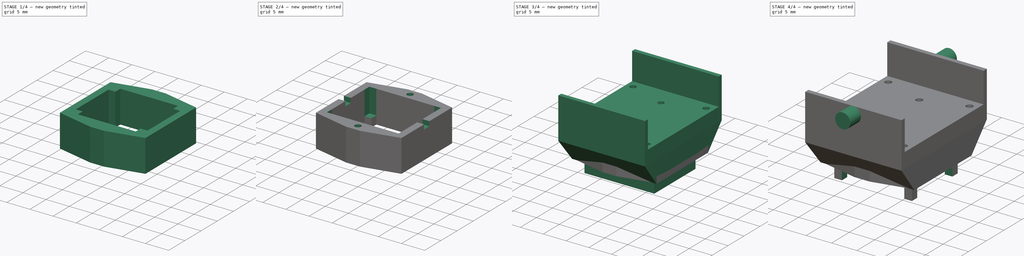
[diagram: build sequence overview — one tinted view per stage of 4, left to right]
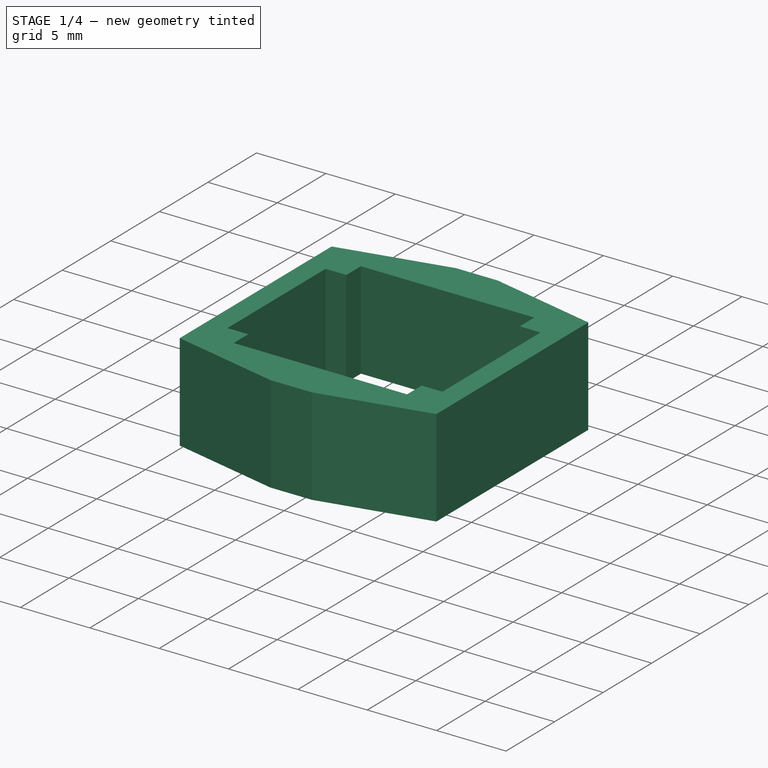
[diagram: stage 1 of 4 — iso view after this stage's code; geometry added in this stage tinted green]
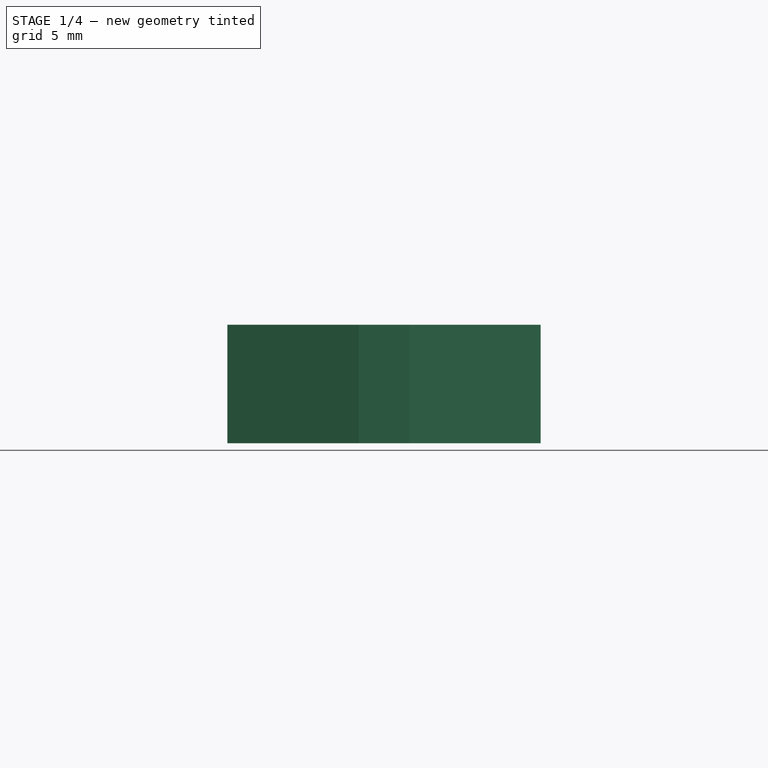
[diagram: stage 1 of 4 — front view after this stage's code; geometry added in this stage tinted green]
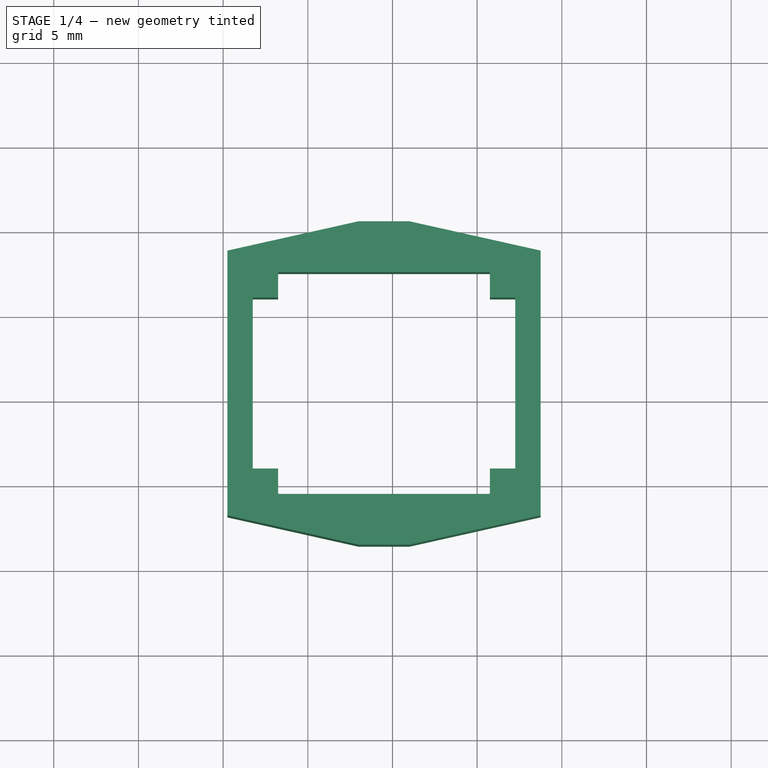
[diagram: stage 1 of 4 — top view after this stage's code; geometry added in this stage tinted green]
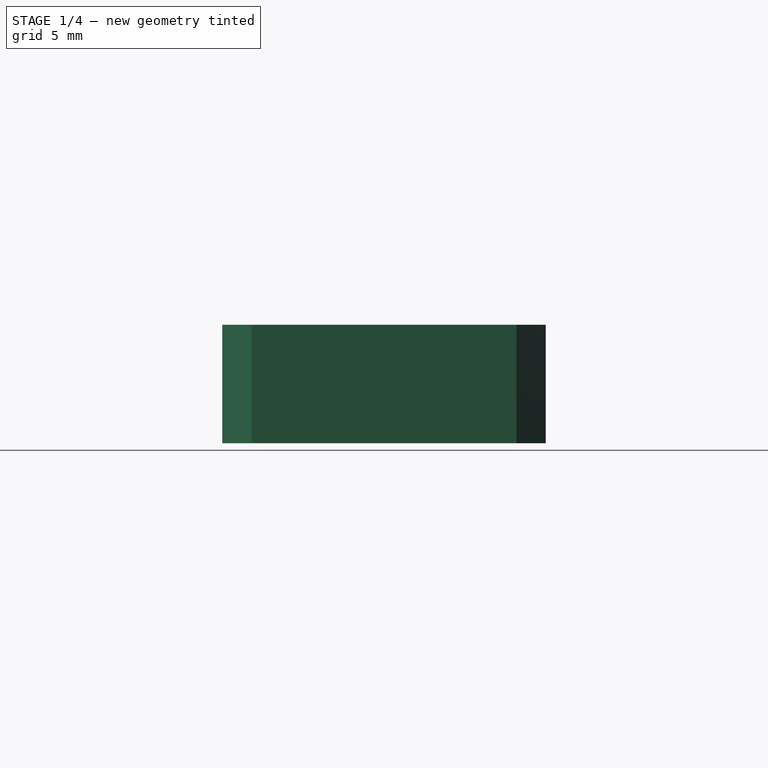
[diagram: stage 1 of 4 — right view after this stage's code; geometry added in this stage tinted green]
FCSTD DOCUMENT  (FreeCAD 0.19R24267 +99 (Git))
Label: Camera
License: All rights reserved
LicenseURL: http://en.wikipedia.org/wiki/All_rights_reserved
objects: Sketcher::SketchObject×16, PartDesign::Pocket×6, PartDesign::Pad×5, PartDesign::Body×2, PartDesign::AdditiveLoft×1
note: 42 computed .brp shape members not serialized (recipe doc carries the construction recipe); baked Part::Feature solids carry a one-line shape summary decoded from their .brp

FEATURE [Sketcher::SketchObject] Sketch
  FullyConstrained = true
  MapMode = 5
  Support = -> [XY_Plane]
  sketch-geometry (25):
    g0: LineSegment StartX=0 StartY=0 StartZ=0 EndX=19 EndY=0 EndZ=0
    g1: LineSegment StartX=19 StartY=0 StartZ=0 EndX=19 EndY=22 EndZ=0
    g2: LineSegment StartX=19 StartY=22 StartZ=0 EndX=0 EndY=22 EndZ=0
    g3: LineSegment StartX=0 StartY=22 StartZ=0 EndX=0 EndY=0 EndZ=0
    g4: LineSegment StartX=0 StartY=-1 StartZ=0 EndX=19 EndY=-1 EndZ=0
    g5: LineSegment StartX=19 StartY=-1 StartZ=0 EndX=19 EndY=23 EndZ=0
    g6: LineSegment StartX=19 StartY=23 StartZ=0 EndX=0 EndY=23 EndZ=0
    g7: LineSegment StartX=0 StartY=23 StartZ=0 EndX=0 EndY=-1 EndZ=0
    g8: LineSegment StartX=1.5 StartY=20.25 StartZ=0 EndX=17.5 EndY=20.25 EndZ=0
    g9: LineSegment StartX=17.5 StartY=20.25 StartZ=0 EndX=17.5 EndY=1.75 EndZ=0
    g10: LineSegment StartX=17.5 StartY=1.75 StartZ=0 EndX=1.5 EndY=1.75 EndZ=0
    g11: LineSegment StartX=1.5 StartY=1.75 StartZ=0 EndX=1.5 EndY=20.25 EndZ=0
    g12: LineSegment StartX=1.5 StartY=20.25 StartZ=0 EndX=17.5 EndY=1.75 EndZ=0
    g13: LineSegment StartX=17.5 StartY=20.25 StartZ=0 EndX=1.5 EndY=1.75 EndZ=0
    g14: GeomPoint X=9.5 Y=11 Z=0
    g15: GeomPoint X=0 Y=11 Z=0
    g16: GeomPoint X=19 Y=11 Z=0
    g17: GeomPoint X=9.5 Y=22 Z=0
    g18: GeomPoint X=9.5 Y=0 Z=0
    g19: Circle CenterX=1.5 CenterY=20.25 CenterZ=0 NormalX=0 NormalY=0 NormalZ=1 AngleXU=0 Radius=0.65
    g20: Circle CenterX=17.5 CenterY=20.25 CenterZ=0 NormalX=0 NormalY=0 NormalZ=1 AngleXU=0 Radius=0.65
    g21: Circle CenterX=17.5 CenterY=1.75 CenterZ=0 NormalX=0 NormalY=0 NormalZ=1 AngleXU=0 Radius=0.65
    g22: Circle CenterX=1.5 CenterY=1.75 CenterZ=0 NormalX=0 NormalY=0 NormalZ=1 AngleXU=0 Radius=0.65
    g23: GeomPoint X=9.5 Y=23 Z=0
    g24: GeomPoint X=9.5 Y=-1 Z=0
  constraints (58):
    c: Coincident(g0,g1)
    c: Coincident(g1,g2)
    c: Coincident(g2,g3)
    c: Coincident(g3,g0)
    c: Horizontal(g0)
    c: Horizontal(g2)
    c: Vertical(g1)
    c: Vertical(g3)
    c: Coincident(g0,g-1)
    c: Distance(g2) = 19
    c: Distance(g1) = 22
    c: Coincident(g4,g5)
    c: Coincident(g5,g6)
    c: Coincident(g6,g7)
    c: Coincident(g7,g4)
    c: Horizontal(g4)
    c: Horizontal(g6)
    c: Vertical(g5)
    c: Vertical(g7)
    c: PointOnObject(g2,g7)
    c: PointOnObject(g1,g5)
    c: Coincident(g8,g9)
    c: Coincident(g9,g10)
    c: Coincident(g10,g11)
    c: Coincident(g11,g8)
    c: Horizontal(g8)
    c: Horizontal(g10)
    c: Vertical(g9)
    c: Vertical(g11)
    c: Distance(g11) = 18.5
    c: Distance(g8) = 16
    c: Coincident(g12,g8)
    c: Coincident(g12,g9)
    c: Coincident(g13,g8)
    c: Coincident(g13,g10)
    c: PointOnObject(g14,g12)
    c: PointOnObject(g14,g13)
    c: PointOnObject(g15,g7)
    c: PointOnObject(g16,g5)
    c: Horizontal(g15,g16)
    c: Symmetric(g15,g16,g14)
    c: PointOnObject(g17,g2)
    c: PointOnObject(g18,g0)
    c: Vertical(g17,g18)
    c: Symmetric(g17,g18,g14)
    c: Coincident(g19,g8)
    c: Coincident(g20,g8)
    c: Coincident(g21,g9)
    c: Coincident(g22,g10)
    c: Diameter(g19) = 1.3
    c: Equal(g19,g20)
    c: Equal(g20,g21)
    c: Equal(g21,g22)
    c: PointOnObject(g23,g6)
    c: PointOnObject(g24,g4)
    c: Vertical(g23,g24)
    c: Symmetric(g23,g24,g14)
    c: Distance(g5) = 24
FEATURE [PartDesign::Pad] Pad
  Direction = (1,1,1)
  Length = 9
  Length2 = 100
  Profile = -> Sketch
  Type = 0
FEATURE [Sketcher::SketchObject] Sketch001
  FullyConstrained = true
  MapMode = 5
  Placement = pos=(0,0,0) rot=(0.57735,-0.57735,-0.57735;2.0944rad)
  Support = -> [Pad]
FEATURE [Sketcher::SketchObject] Sketch002
  ExternalGeometry = -> [Pad]
  FullyConstrained = true
  MapMode = 5
  Placement = pos=(0,0,0) rot=(0.57735,-0.57735,-0.57735;2.0944rad)
  Support = -> [Pad]
  sketch-geometry (4):
    g0: LineSegment StartX=-22.1 StartY=12 StartZ=0 EndX=0.1 EndY=12 EndZ=0
    g1: LineSegment StartX=0.1 StartY=12 StartZ=0 EndX=0.1 EndY=3 EndZ=0
    g2: LineSegment StartX=0.1 StartY=3 StartZ=0 EndX=-22.1 EndY=3 EndZ=0
    g3: LineSegment StartX=-22.1 StartY=3 StartZ=0 EndX=-22.1 EndY=12 EndZ=0
  constraints (12):
    c: Coincident(g0,g1)
    c: Coincident(g1,g2)
    c: Coincident(g2,g3)
    c: Coincident(g3,g0)
    c: Horizontal(g0)
    c: Horizontal(g2)
    c: Vertical(g1)
    c: Vertical(g3)
    c: Distance(g-3,g3) = 1.2
    c: Distance(g-4,g1) = 1.2
    c: DistanceY(g1,g-4) = 6
    c: Distance(g3) = 9
FEATURE [PartDesign::Pocket] Pocket
  BaseFeature = -> Pad
  Length = 5
  Length2 = 100
  Profile = -> Sketch002
  Type = 1
FEATURE [Sketcher::SketchObject] Sketch005
  AttachmentOffset = pos=(0,0,-5) rot=(0,0,1;0rad)
  ExternalGeometry = -> [Pocket]
  FullyConstrained = false
  MapMode = 5
  Placement = pos=(0,0,-5) rot=(0,0,1;0rad)
  Support = -> [XY_Plane001]
  sketch-geometry (32):
    g0: LineSegment StartX=1.5 StartY=20.25 StartZ=0 EndX=17.5 EndY=1.75 EndZ=0
    g1: LineSegment StartX=17.5 StartY=20.25 StartZ=0 EndX=1.5 EndY=1.75 EndZ=0
    g2: GeomPoint X=9.5 Y=11 Z=0
    g3: LineSegment StartX=1.75 StartY=17.55 StartZ=0 EndX=17.25 EndY=17.55 EndZ=0
    g4: LineSegment StartX=17.25 StartY=17.55 StartZ=0 EndX=17.25 EndY=4.45 EndZ=0
    g5: LineSegment StartX=17.25 StartY=4.45 StartZ=0 EndX=1.75 EndY=4.45 EndZ=0
    g6: LineSegment StartX=1.75 StartY=4.45 StartZ=0 EndX=1.75 EndY=17.55 EndZ=0
    g7: LineSegment StartX=1.75 StartY=17.55 StartZ=0 EndX=17.25 EndY=4.45 EndZ=0
    g8: LineSegment StartX=17.25 StartY=17.55 StartZ=0 EndX=1.75 EndY=4.45 EndZ=0
    g9: GeomPoint X=9.5 Y=11 Z=0
    g10: LineSegment StartX=18.75 StartY=18.8177 StartZ=0 EndX=18.75 EndY=3.18226 EndZ=0
    g11: LineSegment StartX=0.25 StartY=3.18226 StartZ=0 EndX=0.25 EndY=18.8177 EndZ=0
    g12: LineSegment StartX=0.25 StartY=18.8177 StartZ=0 EndX=8 EndY=20.55 EndZ=0
    g13: LineSegment StartX=8 StartY=20.55 StartZ=0 EndX=11 EndY=20.55 EndZ=0
    g14: LineSegment StartX=11 StartY=20.55 StartZ=0 EndX=18.75 EndY=18.8177 EndZ=0
    g15: LineSegment StartX=18.75 StartY=3.18226 StartZ=0 EndX=11 EndY=1.45 EndZ=0
    g16: LineSegment StartX=11 StartY=1.45 StartZ=0 EndX=8 EndY=1.45 EndZ=0
    g17: LineSegment StartX=8 StartY=1.45 StartZ=0 EndX=0.25 EndY=3.18226 EndZ=0
    g18: LineSegment StartX=3.25 StartY=16.05 StartZ=0 EndX=1.75 EndY=16.05 EndZ=0
    g19: LineSegment StartX=1.75 StartY=16.05 StartZ=0 EndX=1.75 EndY=5.95 EndZ=0
    g20: LineSegment StartX=1.75 StartY=5.95 StartZ=0 EndX=3.25 EndY=5.95 EndZ=0
    g21: LineSegment StartX=3.25 StartY=5.95 StartZ=0 EndX=3.25 EndY=4.45 EndZ=0
    g22: LineSegment StartX=3.25 StartY=4.45 StartZ=0 EndX=15.75 EndY=4.45 EndZ=0
    g23: LineSegment StartX=15.75 StartY=4.45 StartZ=0 EndX=15.75 EndY=5.95 EndZ=0
    g24: LineSegment StartX=15.75 StartY=5.95 StartZ=0 EndX=17.25 EndY=5.95 EndZ=0
    g25: LineSegment StartX=17.25 StartY=5.95 StartZ=0 EndX=17.25 EndY=16.05 EndZ=0
    g26: LineSegment StartX=17.25 StartY=16.05 StartZ=0 EndX=15.75 EndY=16.05 EndZ=0
    g27: LineSegment StartX=15.75 StartY=16.05 StartZ=0 EndX=15.75 EndY=17.55 EndZ=0
    g28: LineSegment StartX=15.75 StartY=17.55 StartZ=0 EndX=3.25 EndY=17.55 EndZ=0
    g29: LineSegment StartX=3.25 StartY=17.55 StartZ=0 EndX=3.25 EndY=16.05 EndZ=0
    g30: LineSegment StartX=9.5 StartY=25.5346 StartZ=0 EndX=9.5 EndY=-4.46544 EndZ=0
    g31: LineSegment StartX=-4.48817 StartY=11 StartZ=0 EndX=25.5118 EndY=11 EndZ=0
  constraints (85):
    c: Coincident(g0,g-3)
    c: Coincident(g0,g-5)
    c: Coincident(g1,g-4)
    c: Coincident(g1,g-6)
    c: PointOnObject(g2,g0)
    c: PointOnObject(g2,g1)
    c: Coincident(g3,g4)
    c: Coincident(g4,g5)
    c: Coincident(g5,g6)
    c: Coincident(g6,g3)
    c: Horizontal(g3)
    c: Horizontal(g5)
    c: Vertical(g4)
    c: Vertical(g6)
    c: Coincident(g7,g3)
    c: Coincident(g7,g4)
    c: Coincident(g8,g3)
    c: Coincident(g8,g5)
    c: PointOnObject(g9,g8)
    c: PointOnObject(g9,g7)
    c: Coincident(g9,g2)
    c: Distance(g3) = 15.5
    c: Distance(g4) = 13.1
    c: Vertical(g10)
    c: Vertical(g11)
    c: Distance(g3,g10) = 1.5
    c: Distance(g3,g11) = 1.5
    c: Coincident(g11,g12)
    c: Coincident(g12,g13)
    c: Horizontal(g13)
    c: Coincident(g13,g14)
    c: Coincident(g14,g10)
    c: Coincident(g10,g15)
    c: Coincident(g15,g16)
    c: Coincident(g16,g17)
    c: Coincident(g17,g11)
    c: PointOnObject(g18,g6)
    c: Horizontal(g18)
    c: Coincident(g18,g19)
    c: PointOnObject(g19,g6)
    c: Coincident(g19,g20)
    c: Horizontal(g20)
    c: Coincident(g20,g21)
    c: PointOnObject(g21,g5)
    c: Vertical(g21)
    c: Coincident(g21,g22)
    c: PointOnObject(g22,g5)
    c: Coincident(g22,g23)
    c: Vertical(g23)
    c: Coincident(g23,g24)
    c: PointOnObject(g24,g4)
    c: Horizontal(g24)
    c: Coincident(g24,g25)
    c: PointOnObject(g25,g4)
    c: Coincident(g25,g26)
    c: Horizontal(g26)
    c: Coincident(g26,g27)
    c: PointOnObject(g27,g3)
    c: Vertical(g27)
    c: Coincident(g27,g28)
    c: PointOnObject(g28,g3)
    c: Coincident(g28,g29)
    c: Coincident(g29,g18)
    c: Vertical(g29)
    c: Distance(g29) = 1.5
    c: Distance(g18) = 1.5
    c: Distance(g27) = 1.5
    c: Distance(g26) = 1.5
    c: Equal(g18,g20)
    c: Equal(g29,g21)
    c: Equal(g27,g24)
    c: Equal(g26,g23)
    c: Vertical(g12,g16)
    c: Vertical(g13,g15)
    c: Horizontal(g16)
    c: PointOnObject(g2,g30)
    c: Symmetric(g16,g15,g30)
    c: Distance(g15,g22) = 3
    c: Distance(g16) = 3
    c: PointOnObject(g2,g31)
    c: Symmetric(g13,g15,g31)
    c: Horizontal(g11,g10)
    c: Horizontal(g10,g11)
    c: PointOnObject(g10,g8)
    c: PointOnObject(g10,g7)
FEATURE [PartDesign::Pad] Pad001
  Direction = (1,1,1)
  Length = 7
  Length2 = 100
  Profile = -> Sketch005
  Type = 0
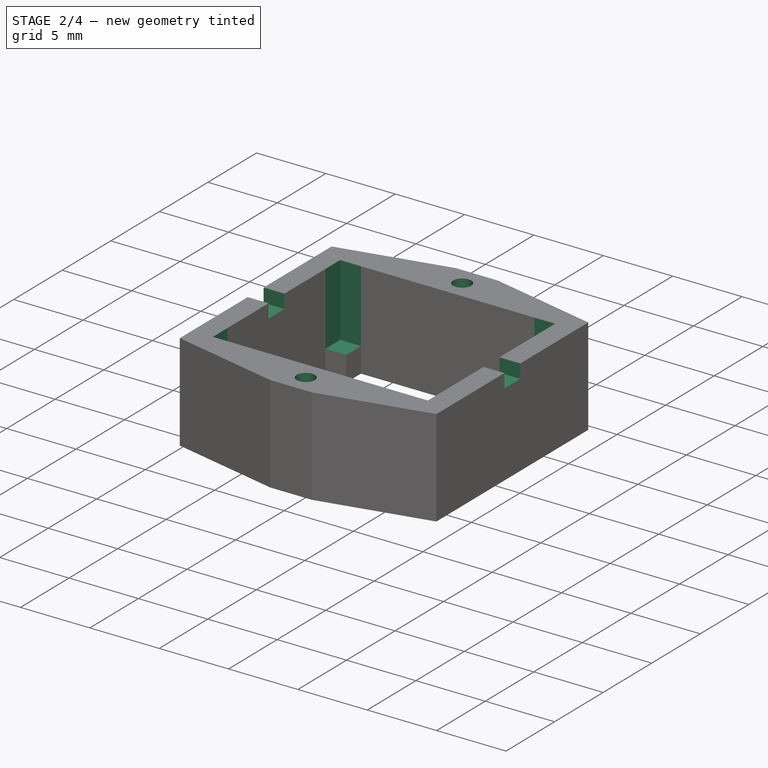
[diagram: stage 2 of 4 — iso view after this stage's code; geometry added in this stage tinted green]
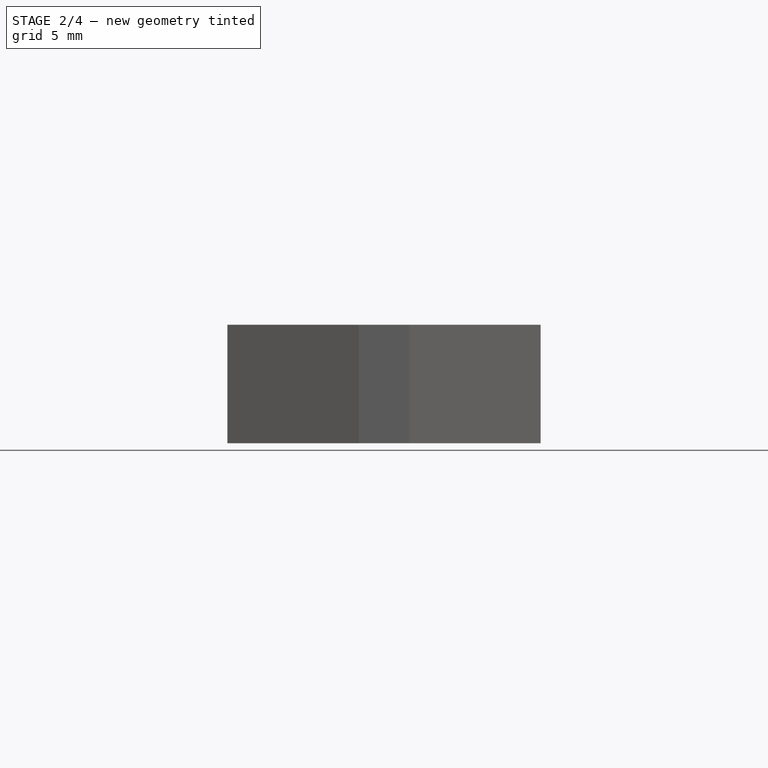
[diagram: stage 2 of 4 — front view after this stage's code; geometry added in this stage tinted green]
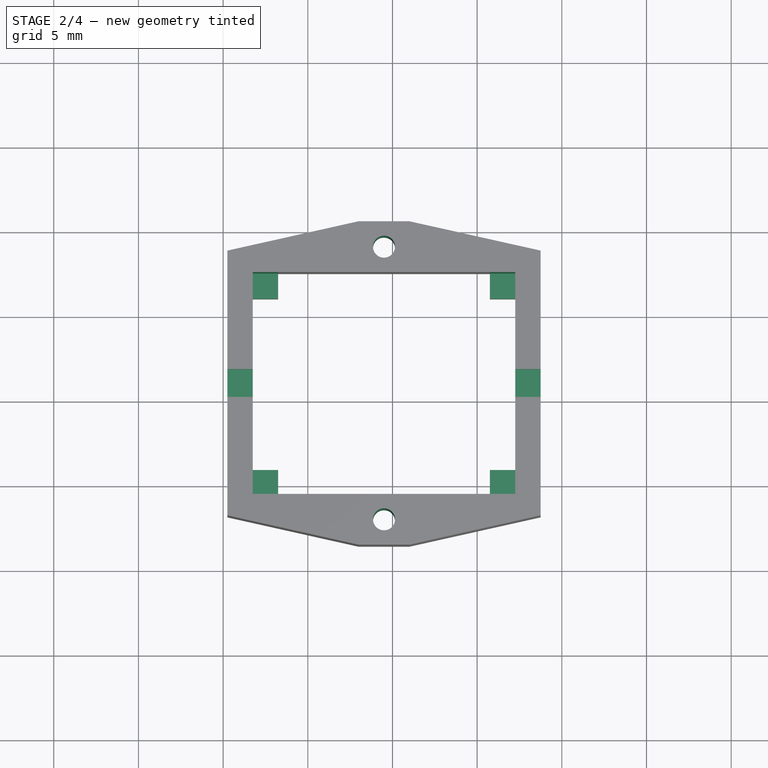
[diagram: stage 2 of 4 — top view after this stage's code; geometry added in this stage tinted green]
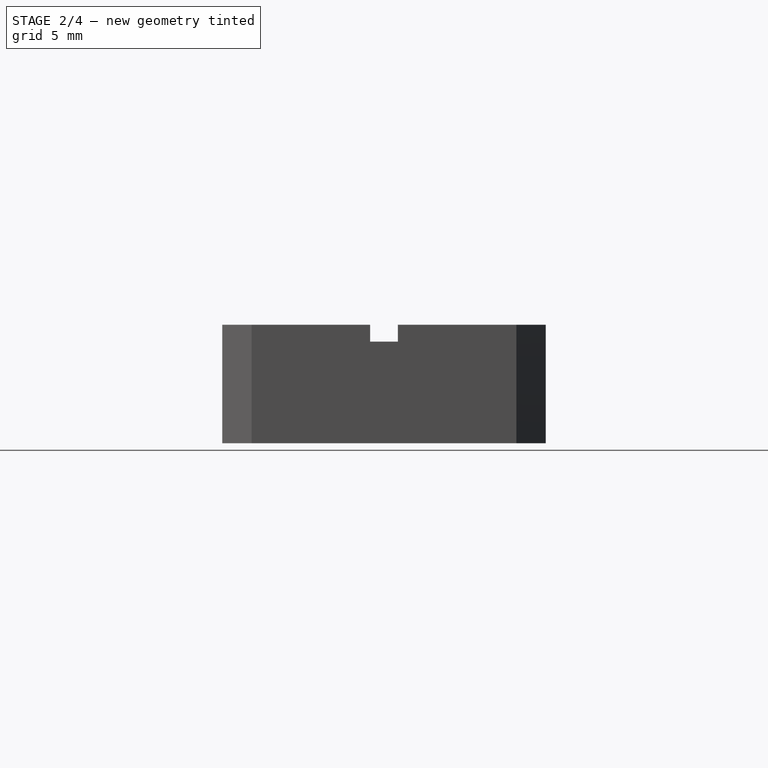
[diagram: stage 2 of 4 — right view after this stage's code; geometry added in this stage tinted green]
FEATURE [Sketcher::SketchObject] Sketch006
  ExternalGeometry = -> [Pad001]
  FullyConstrained = true
  MapMode = 5
  Placement = pos=(0,0,-5) rot=(1,0,0;3.14159rad)
  Support = -> [Pad001]
  sketch-geometry (15):
    g0: LineSegment StartX=8 StartY=-1.45 StartZ=0 EndX=11 EndY=-1.45 EndZ=0
    g1: LineSegment StartX=11 StartY=-1.45 StartZ=0 EndX=11 EndY=-4.45 EndZ=0
    g2: LineSegment StartX=11 StartY=-4.45 StartZ=0 EndX=8 EndY=-4.45 EndZ=0
    g3: LineSegment StartX=8 StartY=-4.45 StartZ=0 EndX=8 EndY=-1.45 EndZ=0
    g4: LineSegment StartX=8 StartY=-1.45 StartZ=0 EndX=11 EndY=-4.45 EndZ=0
    g5: LineSegment StartX=11 StartY=-1.45 StartZ=0 EndX=8 EndY=-4.45 EndZ=0
    g6: GeomPoint X=9.5 Y=-2.95 Z=0
    g7: Circle CenterX=9.5 CenterY=-2.95 CenterZ=0 NormalX=0 NormalY=0 NormalZ=1 AngleXU=0 Radius=0.65
    g8: LineSegment StartX=8 StartY=-20.55 StartZ=0 EndX=11 EndY=-20.55 EndZ=0
    g9: LineSegment StartX=11 StartY=-20.55 StartZ=0 EndX=11 EndY=-17.55 EndZ=0
    g10: LineSegment StartX=11 StartY=-17.55 StartZ=0 EndX=8 EndY=-17.55 EndZ=0
    g11: LineSegment StartX=8 StartY=-17.55 StartZ=0 EndX=8 EndY=-20.55 EndZ=0
    g12: LineSegment StartX=8 StartY=-17.55 StartZ=0 EndX=11 EndY=-20.55 EndZ=0
    g13: LineSegment StartX=11 StartY=-17.55 StartZ=0 EndX=8 EndY=-20.55 EndZ=0
    g14: Circle CenterX=9.5 CenterY=-19.05 CenterZ=0 NormalX=0 NormalY=0 NormalZ=1 AngleXU=0 Radius=0.65
  constraints (35):
    c: Coincident(g0,g1)
    c: Coincident(g1,g2)
    c: Coincident(g2,g3)
    c: Coincident(g3,g0)
    c: Horizontal(g2)
    c: Vertical(g1)
    c: Vertical(g3)
    c: Coincident(g0,g-3)
    c: Coincident(g0,g-3)
    c: Distance(g3) = 3
    c: Coincident(g4,g0)
    c: Coincident(g4,g1)
    c: Coincident(g5,g0)
    c: Coincident(g5,g2)
    c: PointOnObject(g6,g4)
    c: PointOnObject(g6,g5)
    c: Coincident(g7,g6)
    c: Diameter(g7) = 1.3
    c: Coincident(g8,g9)
    c: Coincident(g9,g10)
    c: Coincident(g10,g11)
    c: Coincident(g11,g8)
    c: Horizontal(g10)
    c: Vertical(g9)
    c: Vertical(g11)
    c: Coincident(g8,g-4)
    c: Coincident(g8,g-4)
    c: Distance(g11) = 3
    c: Coincident(g12,g10)
    c: Coincident(g12,g8)
    c: Coincident(g13,g9)
    c: Coincident(g13,g8)
    c: PointOnObject(g14,g13)
    c: PointOnObject(g14,g12)
    c: Diameter(g14) = 1.3
FEATURE [PartDesign::Pocket] Pocket001
  BaseFeature = -> Pad001
  Length = 5
  Length2 = 100
  Profile = -> Sketch006
  Type = 1
FEATURE [Sketcher::SketchObject] Sketch007
  FullyConstrained = true
  MapMode = 5
  Placement = pos=(0.25,0,0) rot=(0.57735,-0.57735,-0.57735;2.0944rad)
  Support = -> [Pocket001]
FEATURE [Sketcher::SketchObject] Sketch008
  AttachmentOffset = pos=(0,0,2) rot=(0,0,1;0rad)
  ExternalGeometry = -> [Pad001]
  FullyConstrained = true
  MapMode = 5
  Placement = pos=(0,0,2) rot=(0,0,1;0rad)
  Support = -> [XY_Plane001]
  sketch-geometry (8):
    g0: LineSegment StartX=1.75 StartY=17.55 StartZ=0 EndX=17.25 EndY=17.55 EndZ=0
    g1: LineSegment StartX=17.25 StartY=17.55 StartZ=0 EndX=17.25 EndY=4.45 EndZ=0
    g2: LineSegment StartX=17.25 StartY=4.45 StartZ=0 EndX=1.75 EndY=4.45 EndZ=0
    g3: LineSegment StartX=1.75 StartY=4.45 StartZ=0 EndX=1.75 EndY=17.55 EndZ=0
    g4: LineSegment StartX=1.75 StartY=17.55 StartZ=0 EndX=17.25 EndY=17.55 EndZ=0
    g5: LineSegment StartX=17.25 StartY=17.55 StartZ=0 EndX=17.25 EndY=4.45 EndZ=0
    g6: LineSegment StartX=17.25 StartY=4.45 StartZ=0 EndX=1.75 EndY=4.45 EndZ=0
    g7: LineSegment StartX=1.75 StartY=4.45 StartZ=0 EndX=1.75 EndY=17.55 EndZ=0
  constraints (22):
    c: Coincident(g0,g1)
    c: Coincident(g1,g2)
    c: Coincident(g2,g3)
    c: Coincident(g3,g0)
    c: Horizontal(g0)
    c: Horizontal(g2)
    c: Vertical(g1)
    c: Vertical(g3)
    c: PointOnObject(g-4,g0)
    c: PointOnObject(g-5,g3)
    c: PointOnObject(g-3,g2)
    c: PointOnObject(g-6,g1)
    c: Coincident(g4,g5)
    c: Coincident(g5,g6)
    c: Coincident(g6,g7)
    c: Coincident(g7,g4)
    c: Horizontal(g4)
    c: Horizontal(g6)
    c: Vertical(g5)
    c: Vertical(g7)
    c: Coincident(g4,g0)
    c: Coincident(g5,g1)
FEATURE [PartDesign::Pocket] Pocket002
  BaseFeature = -> Pocket001
  Length = 5.2
  Length2 = 100
  Profile = -> Sketch008
  Type = 0
FEATURE [PartDesign::Body] Body
  Group = -> [Sketch,Pad,Sketch001,Sketch002,Pocket,Sketch003,Sketch004,AdditiveLoft,Sketch009,Pocket003,Sketch010,Pad002,Sketch011,Pocket004,Sketch012,Sketch013,Pad003,Sketch014,Pad004]
  Origin = -> Origin
  Tip = -> Pad004
FEATURE [Sketcher::SketchObject] Sketch015
  ExternalGeometry = -> [Pocket002]
  FullyConstrained = true
  MapMode = 5
  Placement = pos=(18.75,0,0) rot=(0.57735,0.57735,0.57735;2.0944rad)
  Support = -> [Pocket002]
  sketch-geometry (4):
    g0: LineSegment StartX=10.1823 StartY=2 StartZ=0 EndX=11.8177 EndY=2 EndZ=0
    g1: LineSegment StartX=11.8177 StartY=2 StartZ=0 EndX=11.8177 EndY=1 EndZ=0
    g2: LineSegment StartX=11.8177 StartY=1 StartZ=0 EndX=10.1823 EndY=1 EndZ=0
    g3: LineSegment StartX=10.1823 StartY=1 StartZ=0 EndX=10.1823 EndY=2 EndZ=0
  constraints (12):
    c: Coincident(g0,g1)
    c: Coincident(g1,g2)
    c: Coincident(g2,g3)
    c: Coincident(g3,g0)
    c: Horizontal(g0)
    c: Horizontal(g2)
    c: Vertical(g1)
    c: Vertical(g3)
    c: PointOnObject(g0,g-3)
    c: Distance(g0,g-3) = 7
    c: Distance(g0,g-3) = 7
    c: Distance(g1) = 1
FEATURE [PartDesign::Pocket] Pocket005
  BaseFeature = -> Pocket002
  Length = 30
  Length2 = 100
  Profile = -> Sketch015
  Type = 0
FEATURE [PartDesign::Body] Body001
  Group = -> [Sketch005,Pad001,Sketch006,Pocket001,Sketch007,Sketch008,Pocket002,Sketch015,Pocket005]
  Origin = -> Origin001
  Placement = pos=(0,0,-10) rot=(0,0,1;0rad)
  Tip = -> Pocket005
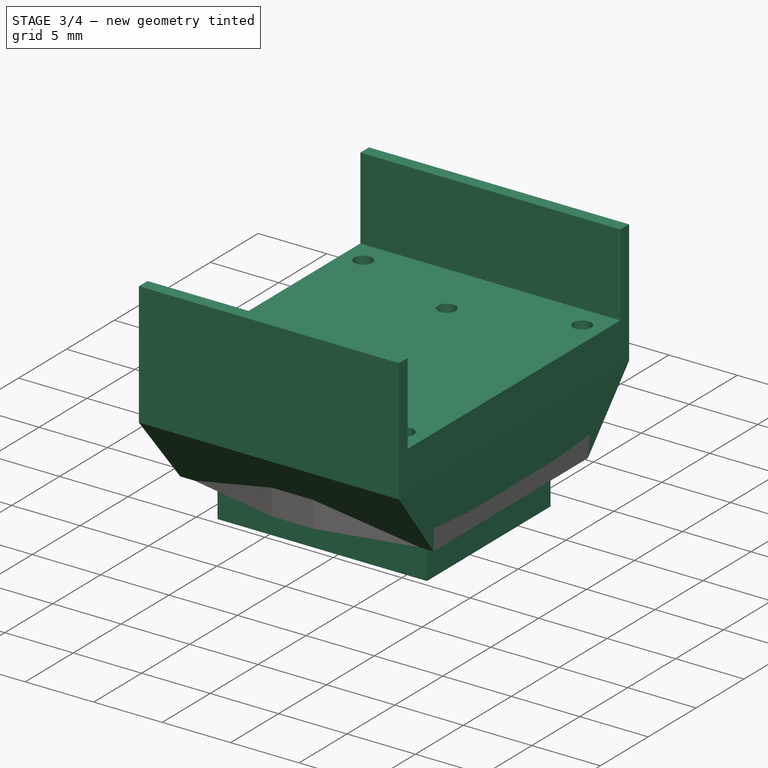
[diagram: stage 3 of 4 — iso view after this stage's code; geometry added in this stage tinted green]
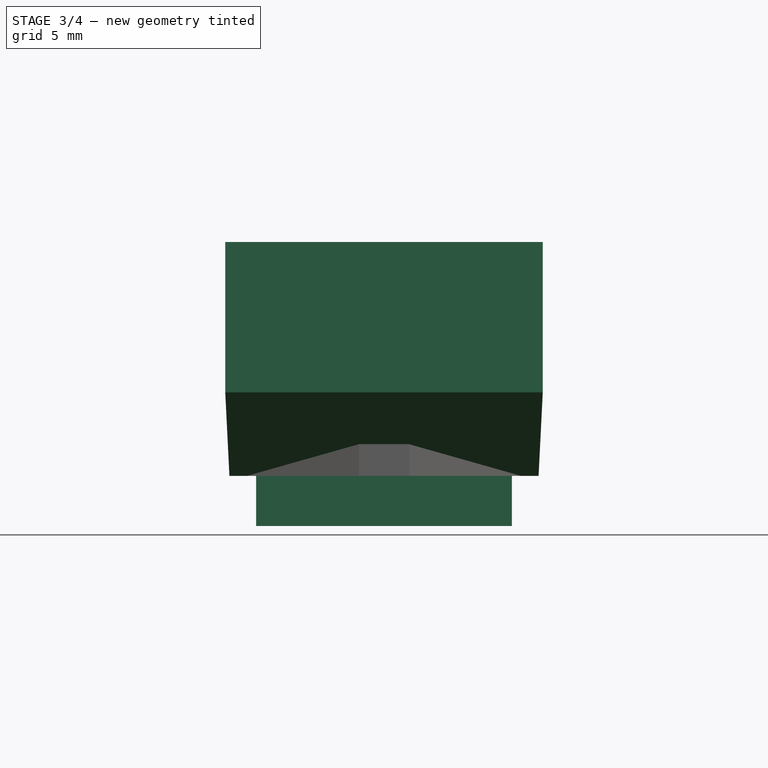
[diagram: stage 3 of 4 — front view after this stage's code; geometry added in this stage tinted green]
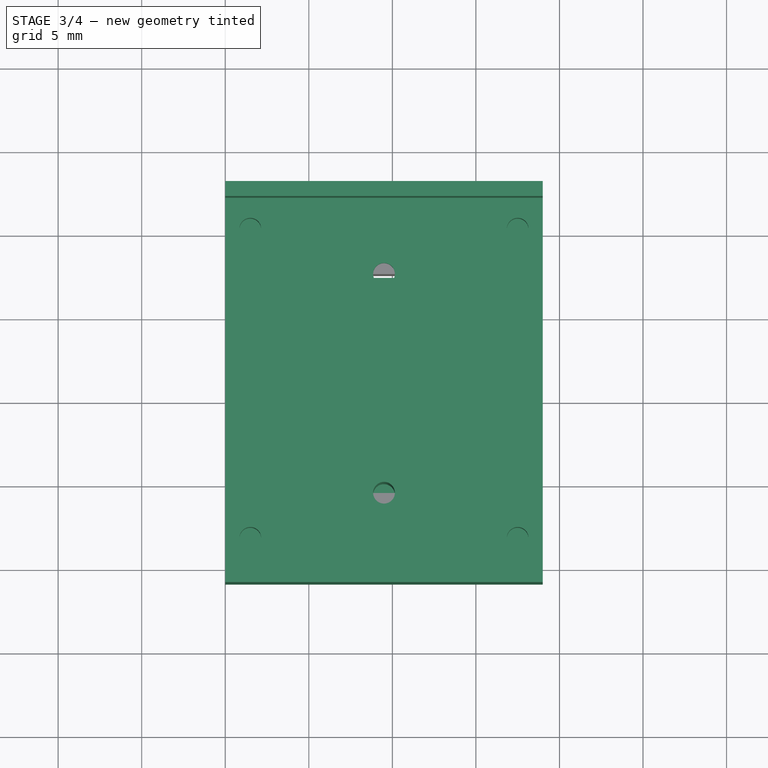
[diagram: stage 3 of 4 — top view after this stage's code; geometry added in this stage tinted green]
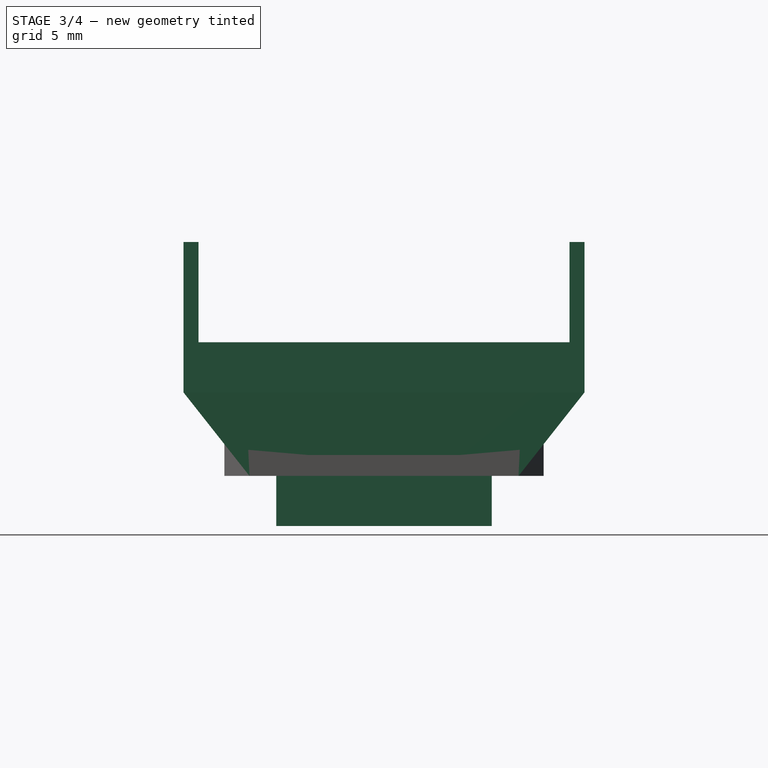
[diagram: stage 3 of 4 — right view after this stage's code; geometry added in this stage tinted green]
FEATURE [Sketcher::SketchObject] Sketch003
  AttachmentOffset = pos=(0,0,-5) rot=(0,0,1;0rad)
  ExternalGeometry = -> [Pocket]
  FullyConstrained = true
  MapMode = 5
  Placement = pos=(0,0,-5) rot=(0,0,1;0rad)
  Support = -> [XY_Plane]
  sketch-geometry (14):
    g0: LineSegment StartX=1.5 StartY=20.25 StartZ=0 EndX=17.5 EndY=1.75 EndZ=0
    g1: LineSegment StartX=17.5 StartY=20.25 StartZ=0 EndX=1.5 EndY=1.75 EndZ=0
    g2: GeomPoint X=9.5 Y=11 Z=0
    g3: LineSegment StartX=1.75 StartY=17.55 StartZ=0 EndX=17.25 EndY=17.55 EndZ=0
    g4: LineSegment StartX=17.25 StartY=17.55 StartZ=0 EndX=17.25 EndY=4.45 EndZ=0
    g5: LineSegment StartX=17.25 StartY=4.45 StartZ=0 EndX=1.75 EndY=4.45 EndZ=0
    g6: LineSegment StartX=1.75 StartY=4.45 StartZ=0 EndX=1.75 EndY=17.55 EndZ=0
    g7: LineSegment StartX=1.75 StartY=17.55 StartZ=0 EndX=17.25 EndY=4.45 EndZ=0
    g8: LineSegment StartX=17.25 StartY=17.55 StartZ=0 EndX=1.75 EndY=4.45 EndZ=0
    g9: GeomPoint X=9.5 Y=11 Z=0
    g10: LineSegment StartX=0.25 StartY=19.05 StartZ=0 EndX=18.75 EndY=19.05 EndZ=0
    g11: LineSegment StartX=18.75 StartY=19.05 StartZ=0 EndX=18.75 EndY=2.95 EndZ=0
    g12: LineSegment StartX=18.75 StartY=2.95 StartZ=0 EndX=0.25 EndY=2.95 EndZ=0
    g13: LineSegment StartX=0.25 StartY=2.95 StartZ=0 EndX=0.25 EndY=19.05 EndZ=0
  constraints (35):
    c: Coincident(g0,g-3)
    c: Coincident(g0,g-5)
    c: Coincident(g1,g-4)
    c: Coincident(g1,g-6)
    c: PointOnObject(g2,g0)
    c: PointOnObject(g2,g1)
    c: Coincident(g3,g4)
    c: Coincident(g4,g5)
    c: Coincident(g5,g6)
    c: Coincident(g6,g3)
    c: Horizontal(g3)
    c: Horizontal(g5)
    c: Vertical(g4)
    c: Vertical(g6)
    c: Coincident(g7,g3)
    c: Coincident(g7,g4)
    c: Coincident(g8,g3)
    c: Coincident(g8,g5)
    c: PointOnObject(g9,g8)
    c: PointOnObject(g9,g7)
    c: Coincident(g9,g2)
    c: Distance(g3) = 15.5
    c: Distance(g4) = 13.1
    c: Coincident(g10,g11)
    c: Coincident(g11,g12)
    c: Coincident(g12,g13)
    c: Coincident(g13,g10)
    c: Horizontal(g10)
    c: Horizontal(g12)
    c: Vertical(g11)
    c: Vertical(g13)
    c: Distance(g3,g11) = 1.5
    c: Distance(g3,g13) = 1.5
    c: Distance(g4,g12) = 1.5
    c: Distance(g3,g10) = 1.5
FEATURE [Sketcher::SketchObject] Sketch004
  ExternalGeometry = -> [Pocket]
  FullyConstrained = true
  MapMode = 5
  Support = -> [XY_Plane]
  sketch-geometry (4):
    g0: LineSegment StartX=0 StartY=23 StartZ=0 EndX=19 EndY=23 EndZ=0
    g1: LineSegment StartX=19 StartY=23 StartZ=0 EndX=19 EndY=-1 EndZ=0
    g2: LineSegment StartX=19 StartY=-1 StartZ=0 EndX=0 EndY=-1 EndZ=0
    g3: LineSegment StartX=0 StartY=-1 StartZ=0 EndX=0 EndY=23 EndZ=0
  constraints (10):
    c: Coincident(g0,g1)
    c: Coincident(g1,g2)
    c: Coincident(g2,g3)
    c: Coincident(g3,g0)
    c: Horizontal(g0)
    c: Horizontal(g2)
    c: Vertical(g3)
    c: PointOnObject(g0,g-2)
    c: Coincident(g0,g-4)
    c: Coincident(g1,g-3)
FEATURE [PartDesign::AdditiveLoft] AdditiveLoft
  BaseFeature = -> Pocket
  Closed = false
  Profile = -> Sketch003
  Ruled = false
  Sections = -> [Sketch004]
FEATURE [Sketcher::SketchObject] Sketch009
  ExternalGeometry = -> [AdditiveLoft]
  FullyConstrained = true
  MapMode = 5
  Placement = pos=(0,0,-5) rot=(1,0,0;3.14159rad)
  Support = -> [AdditiveLoft]
  sketch-geometry (14):
    g0: LineSegment StartX=8 StartY=-2.95 StartZ=0 EndX=11 EndY=-2.95 EndZ=0
    g1: LineSegment StartX=11 StartY=-2.95 StartZ=0 EndX=11 EndY=-5.95 EndZ=0
    g2: LineSegment StartX=11 StartY=-5.95 StartZ=0 EndX=8 EndY=-5.95 EndZ=0
    g3: LineSegment StartX=8 StartY=-5.95 StartZ=0 EndX=8 EndY=-2.95 EndZ=0
    g4: LineSegment StartX=8 StartY=-2.95 StartZ=0 EndX=11 EndY=-5.95 EndZ=0
    g5: LineSegment StartX=11 StartY=-2.95 StartZ=0 EndX=8 EndY=-5.95 EndZ=0
    g6: GeomPoint X=9.5 Y=-4.45 Z=0
    g7: GeomPoint X=0.25 Y=-4.45 Z=0
    g8: GeomPoint X=18.75 Y=-4.45 Z=0
    g9: Circle CenterX=9.5 CenterY=-4.45 CenterZ=0 NormalX=0 NormalY=0 NormalZ=1 AngleXU=0 Radius=0.65
    g10: LineSegment StartX=0.25 StartY=-2.95 StartZ=0 EndX=18.75 EndY=-19.05 EndZ=0
    g11: LineSegment StartX=18.75 StartY=-2.95 StartZ=0 EndX=0.25 EndY=-19.05 EndZ=0
    g12: Circle CenterX=9.5 CenterY=-17.55 CenterZ=0 NormalX=0 NormalY=0 NormalZ=1 AngleXU=0 Radius=0.65
    g13: GeomPoint X=9.5 Y=-11 Z=0
  constraints (31):
    c: Coincident(g0,g1)
    c: Coincident(g1,g2)
    c: Coincident(g2,g3)
    c: Coincident(g3,g0)
    c: Horizontal(g0)
    c: Horizontal(g2)
    c: Vertical(g1)
    c: Vertical(g3)
    c: PointOnObject(g0,g-3)
    c: Coincident(g4,g0)
    c: Coincident(g4,g1)
    c: Coincident(g5,g0)
    c: Coincident(g5,g2)
    c: PointOnObject(g6,g5)
    c: PointOnObject(g6,g4)
    c: PointOnObject(g7,g-5)
    c: PointOnObject(g8,g-6)
    c: Symmetric(g7,g8,g6)
    c: Horizontal(g7,g8)
    c: Distance(g3) = 3
    c: Distance(g0) = 3
    c: Coincident(g9,g6)
    c: Coincident(g10,g-5)
    c: Coincident(g10,g-6)
    c: Coincident(g11,g-5)
    c: Coincident(g-6,g11)
    c: PointOnObject(g13,g10)
    c: PointOnObject(g13,g11)
    c: Symmetric(g9,g12,g13)
    c: Diameter(g9) = 1.3
    c: Diameter(g12) = 1.3
FEATURE [PartDesign::Pocket] Pocket003
  BaseFeature = -> AdditiveLoft
  Length = 5
  Length2 = 100
  Profile = -> Sketch009
  Type = 1
FEATURE [Sketcher::SketchObject] Sketch010
  ExternalGeometry = -> [Pocket003]
  FullyConstrained = true
  MapMode = 5
  Placement = pos=(0,0,-5) rot=(1,0,0;3.14159rad)
  Support = -> [Pocket003]
  sketch-geometry (4):
    g0: LineSegment StartX=1.85 StartY=-4.55 StartZ=0 EndX=17.15 EndY=-4.55 EndZ=0
    g1: LineSegment StartX=17.15 StartY=-4.55 StartZ=0 EndX=17.15 EndY=-17.45 EndZ=0
    g2: LineSegment StartX=17.15 StartY=-17.45 StartZ=0 EndX=1.85 EndY=-17.45 EndZ=0
    g3: LineSegment StartX=1.85 StartY=-17.45 StartZ=0 EndX=1.85 EndY=-4.55 EndZ=0
  constraints (12):
    c: Coincident(g0,g1)
    c: Coincident(g1,g2)
    c: Coincident(g2,g3)
    c: Coincident(g3,g0)
    c: Horizontal(g0)
    c: Horizontal(g2)
    c: Vertical(g1)
    c: Vertical(g3)
    c: Distance(g0,g-3) = 1.6
    c: Distance(g1,g-4) = 1.6
    c: Distance(g0,g-5) = 1.6
    c: Distance(g0,g-6) = 1.6
FEATURE [PartDesign::Pad] Pad002
  BaseFeature = -> Pocket003
  Direction = (1,1,1)
  Length = 3
  Length2 = 100
  Profile = -> Sketch010
  Type = 0
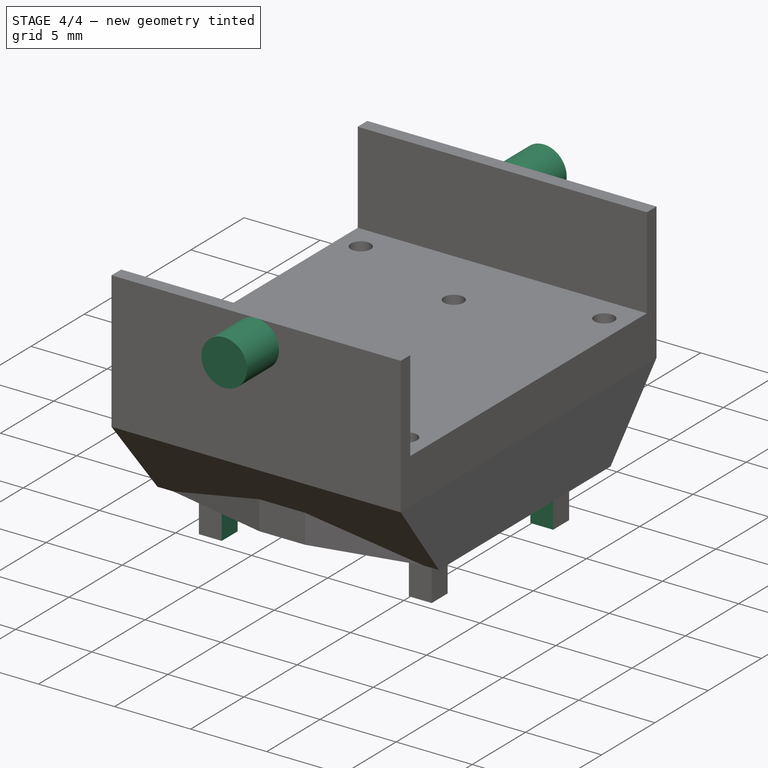
[diagram: stage 4 of 4 — iso view after this stage's code; geometry added in this stage tinted green]
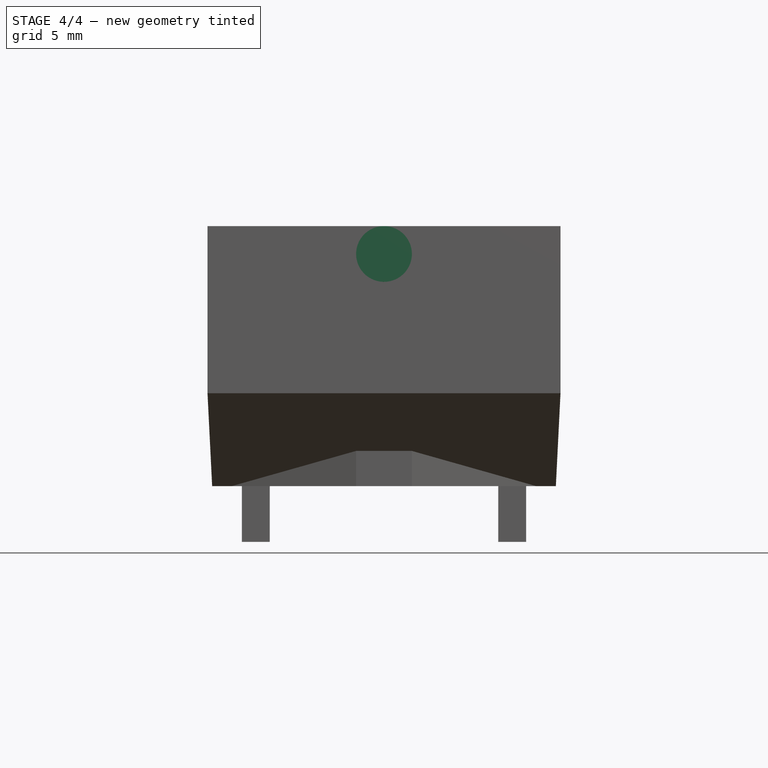
[diagram: stage 4 of 4 — front view after this stage's code; geometry added in this stage tinted green]
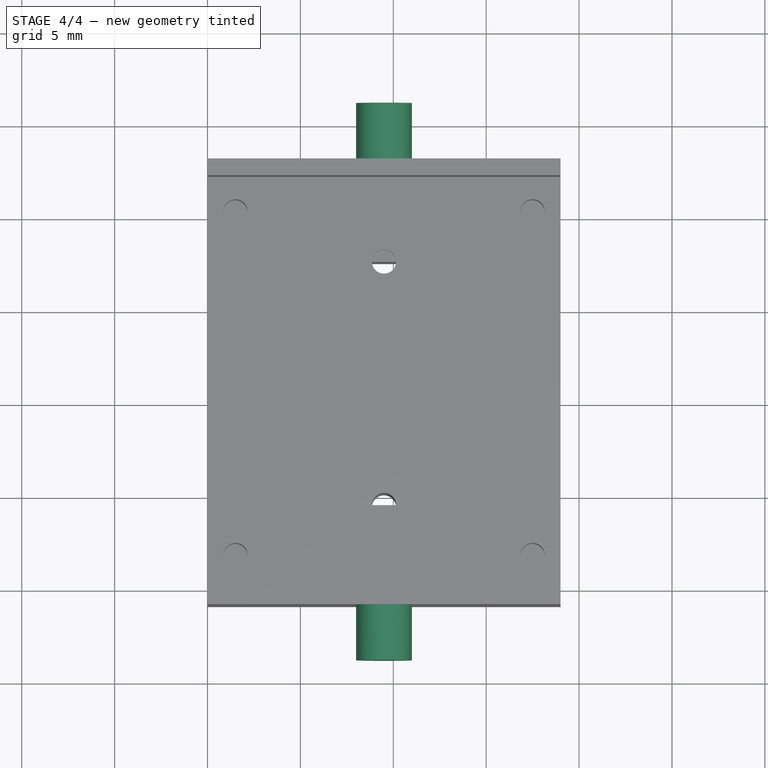
[diagram: stage 4 of 4 — top view after this stage's code; geometry added in this stage tinted green]
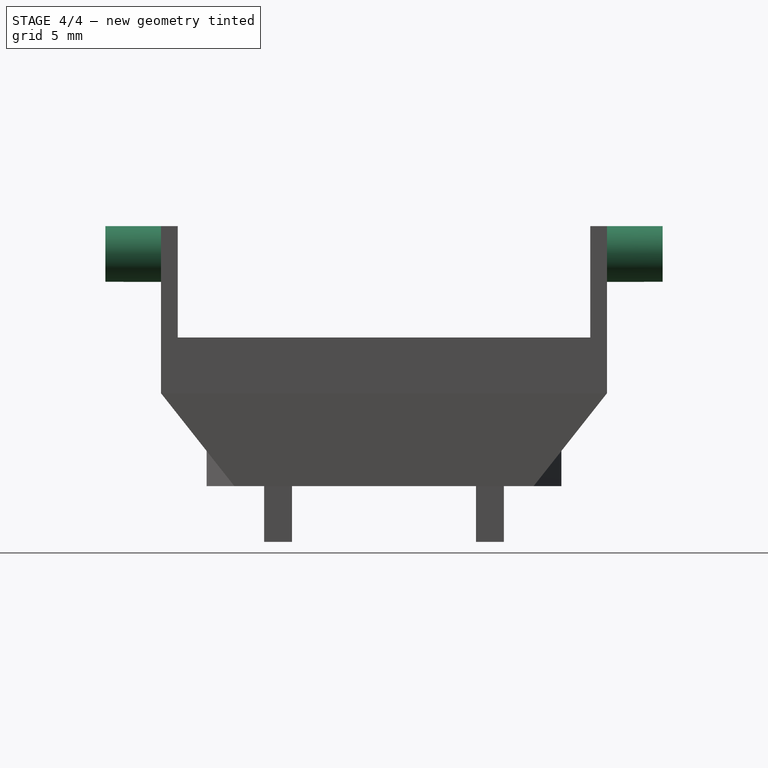
[diagram: stage 4 of 4 — right view after this stage's code; geometry added in this stage tinted green]
FEATURE [Sketcher::SketchObject] Sketch011
  ExternalGeometry = -> [Pad002]
  FullyConstrained = true
  MapMode = 5
  Placement = pos=(0,0,-8) rot=(1,0,0;3.14159rad)
  Support = -> [Pad002]
  sketch-geometry (12):
    g0: LineSegment StartX=3.35 StartY=-4.55 StartZ=0 EndX=3.35 EndY=-6.05 EndZ=0
    g1: LineSegment StartX=3.35 StartY=-6.05 StartZ=0 EndX=1.85 EndY=-6.05 EndZ=0
    g2: LineSegment StartX=1.85 StartY=-6.05 StartZ=0 EndX=1.85 EndY=-15.95 EndZ=0
    g3: LineSegment StartX=1.85 StartY=-15.95 StartZ=0 EndX=3.35 EndY=-15.95 EndZ=0
    g4: LineSegment StartX=3.35 StartY=-15.95 StartZ=0 EndX=3.35 EndY=-17.45 EndZ=0
    g5: LineSegment StartX=3.35 StartY=-17.45 StartZ=0 EndX=15.65 EndY=-17.45 EndZ=0
    g6: LineSegment StartX=15.65 StartY=-17.45 StartZ=0 EndX=15.65 EndY=-15.95 EndZ=0
    g7: LineSegment StartX=15.65 StartY=-15.95 StartZ=0 EndX=17.15 EndY=-15.95 EndZ=0
    g8: LineSegment StartX=17.15 StartY=-15.95 StartZ=0 EndX=17.15 EndY=-6.05 EndZ=0
    g9: LineSegment StartX=17.15 StartY=-6.05 StartZ=0 EndX=15.65 EndY=-6.05 EndZ=0
    g10: LineSegment StartX=15.65 StartY=-6.05 StartZ=0 EndX=15.65 EndY=-4.55 EndZ=0
    g11: LineSegment StartX=3.35 StartY=-4.55 StartZ=0 EndX=15.65 EndY=-4.55 EndZ=0
  constraints (36):
    c: PointOnObject(g0,g-3)
    c: Vertical(g0)
    c: Coincident(g0,g1)
    c: PointOnObject(g1,g-4)
    c: Horizontal(g1)
    c: Coincident(g1,g2)
    c: PointOnObject(g2,g-4)
    c: Coincident(g2,g3)
    c: Horizontal(g3)
    c: Coincident(g3,g4)
    c: PointOnObject(g4,g-5)
    c: Vertical(g4)
    c: Coincident(g4,g5)
    c: PointOnObject(g5,g-5)
    c: Coincident(g5,g6)
    c: Vertical(g6)
    c: Coincident(g6,g7)
    c: PointOnObject(g7,g-6)
    c: Horizontal(g7)
    c: Coincident(g7,g8)
    c: PointOnObject(g8,g-6)
    c: Coincident(g8,g9)
    c: Horizontal(g9)
    c: Coincident(g9,g10)
    c: PointOnObject(g10,g-3)
    c: Vertical(g10)
    c: Coincident(g0,g11)
    c: Coincident(g11,g10)
    c: Distance(g0) = 1.5
    c: Distance(g1) = 1.5
    c: Equal(g0,g10)
    c: Equal(g10,g9)
    c: Equal(g9,g7)
    c: Equal(g7,g6)
    c: Equal(g6,g4)
    c: Equal(g4,g3)
FEATURE [PartDesign::Pocket] Pocket004
  BaseFeature = -> Pad002
  Length = 3
  Length2 = 100
  Profile = -> Sketch011
  Type = 0
FEATURE [Sketcher::SketchObject] Sketch012
  FullyConstrained = true
  MapMode = 5
  Placement = pos=(0,23,0) rot=(0,0.707107,0.707107;3.14159rad)
  Support = -> [Pocket004]
FEATURE [Sketcher::SketchObject] Sketch013
  ExternalGeometry = -> [Pocket004]
  FullyConstrained = true
  MapMode = 5
  Placement = pos=(0,23,0) rot=(0,0.707107,0.707107;3.14159rad)
  Support = -> [Pocket004]
  sketch-geometry (3):
    g0: Circle CenterX=-9.5 CenterY=7.5 CenterZ=0 NormalX=0 NormalY=0 NormalZ=1 AngleXU=0 Radius=1.5
    g1: GeomPoint X=-9.5 Y=9 Z=0
    g2: LineSegment StartX=-9.5 StartY=9 StartZ=0 EndX=-9.5 EndY=7.5 EndZ=0
  constraints (6):
    c: Coincident(g2,g1)
    c: Vertical(g2)
    c: Coincident(g0,g2)
    c: Symmetric(g-3,g-3,g1)
    c: Radius(g0) = 1.5
    c: Distance(g2) = 1.5
FEATURE [PartDesign::Pad] Pad003
  BaseFeature = -> Pocket004
  Direction = (1,1,1)
  Length = 3
  Length2 = 100
  Profile = -> Sketch013
  Type = 0
FEATURE [Sketcher::SketchObject] Sketch014
  ExternalGeometry = -> [Pad003]
  FullyConstrained = true
  MapMode = 5
  Placement = pos=(0,-1,0) rot=(1,0,0;1.5708rad)
  Support = -> [Pad003]
  sketch-geometry (2):
    g0: GeomPoint X=9.5 Y=9 Z=0
    g1: Circle CenterX=9.5 CenterY=7.5 CenterZ=0 NormalX=0 NormalY=0 NormalZ=1 AngleXU=0 Radius=1.5
  constraints (4):
    c: Symmetric(g-3,g-3,g0)
    c: Vertical(g0,g1)
    c: Distance(g0,g1) = 1.5
    c: Radius(g1) = 1.5
FEATURE [PartDesign::Pad] Pad004
  BaseFeature = -> Pad003
  Direction = (1,1,1)
  Length = 3
  Length2 = 100
  Profile = -> Sketch014
  Type = 0
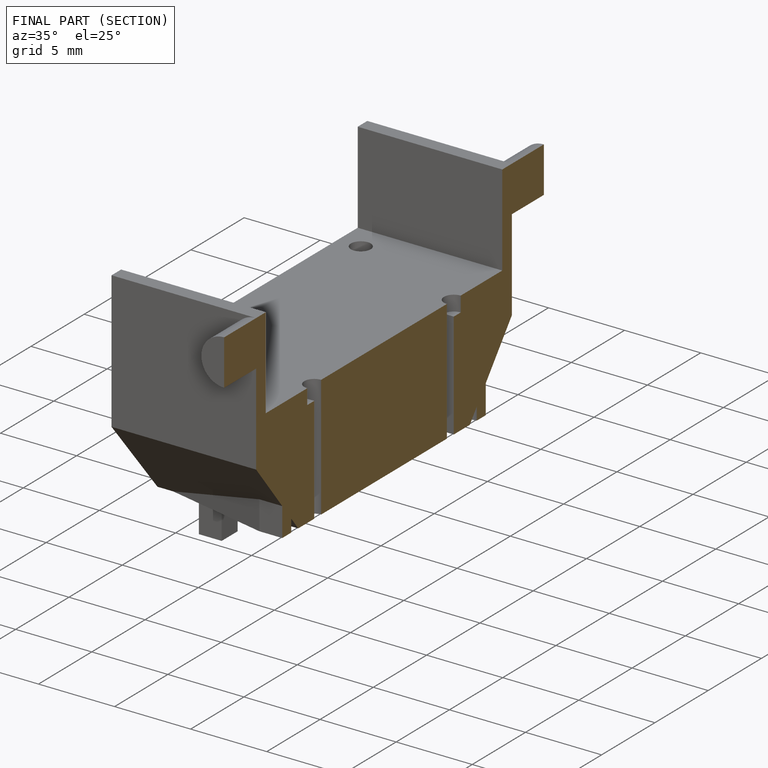
[diagram: finished part — half-section view (interior)]
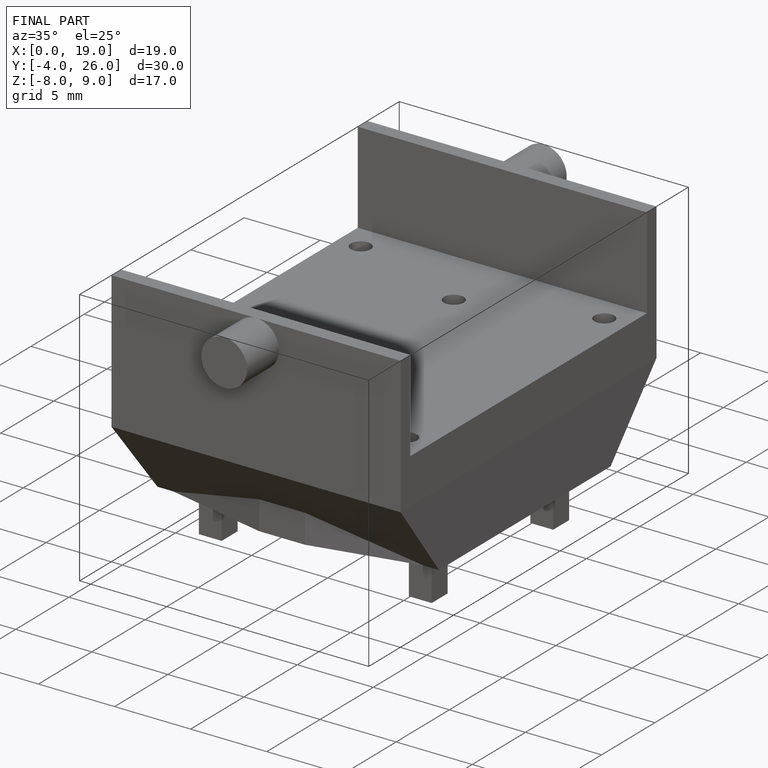
[diagram: finished part — iso view with bounding-box wireframe]
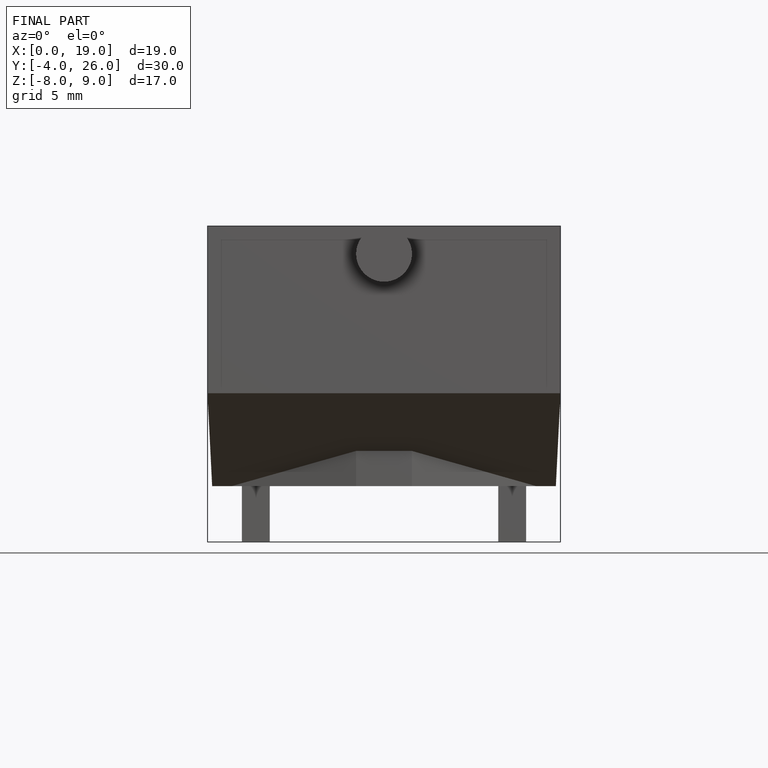
[diagram: finished part — front view with bounding-box wireframe]
